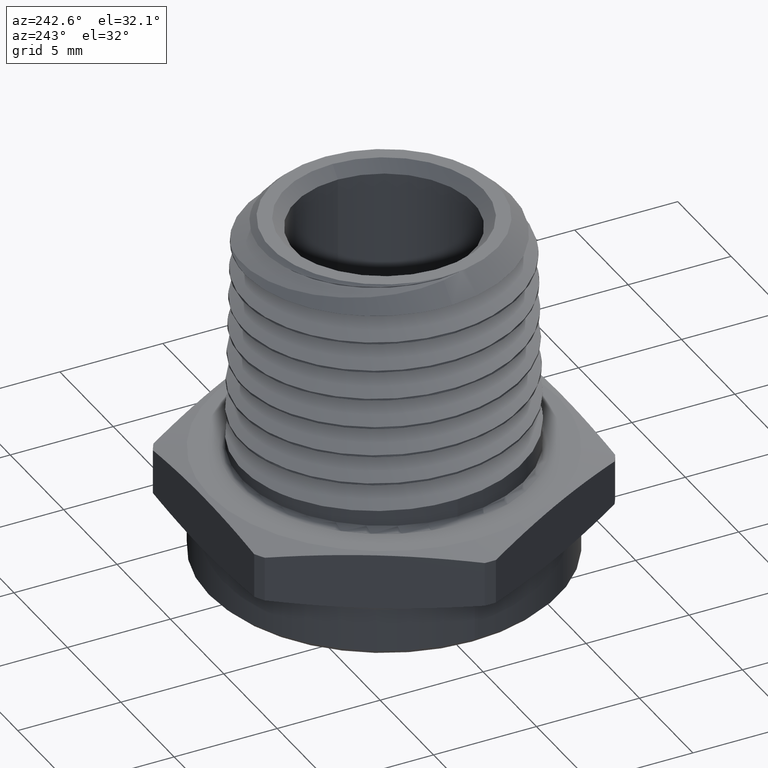
[diagram: clean part render]
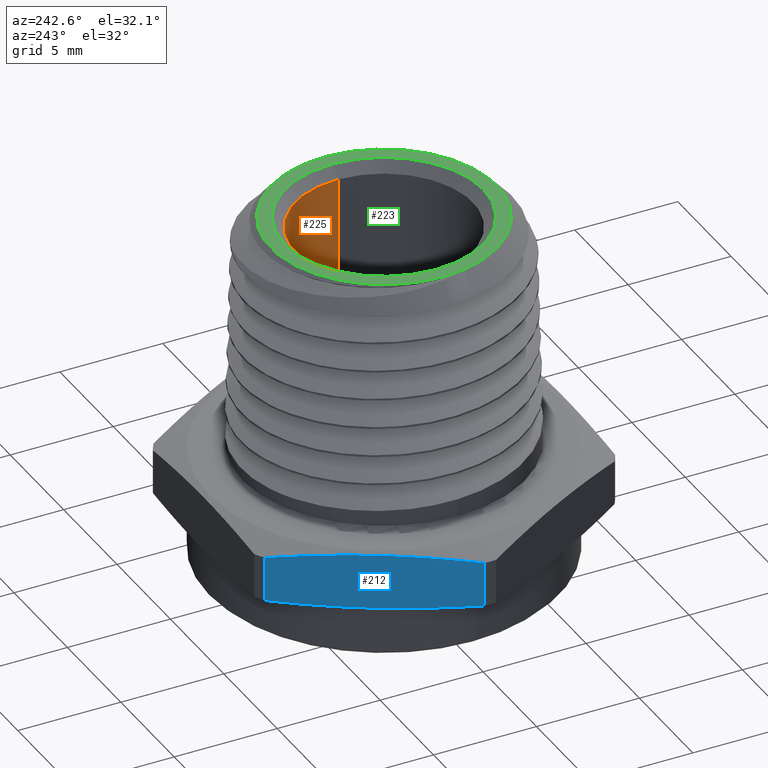
[diagram: same view with three faces highlighted in distinct colors, each labeled with its STEP entity id]
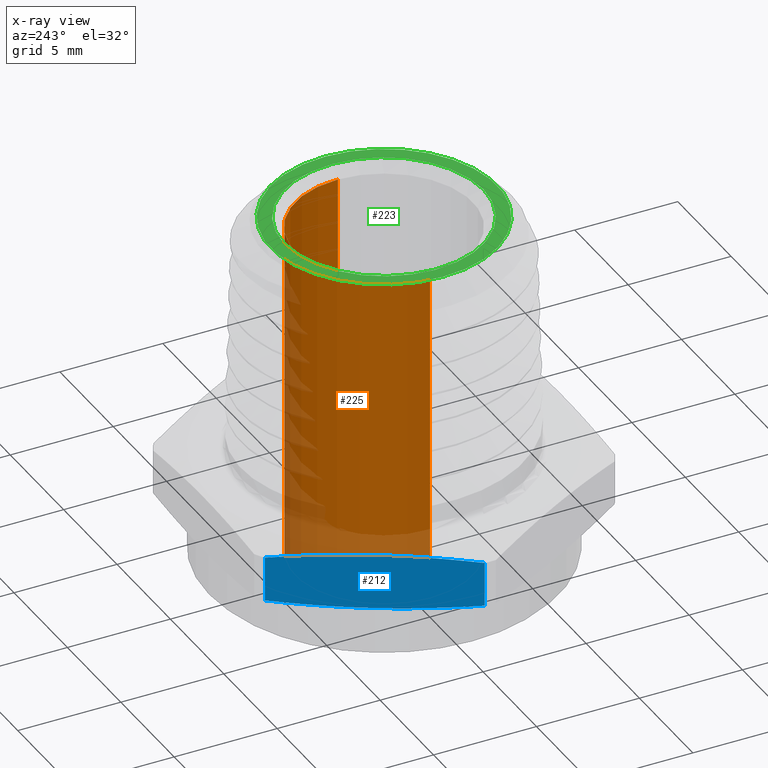
[diagram: x-ray of the same camera — body ghosted, the three highlighted faces saturated]
A machine part, auxiliary view with three faces highlighted in distinct colors.
The next image is the same camera in x-ray (body ghosted, the three faces saturated) — at least one of them is partly hidden behind the body in this view.
Their STEP definitions:

[orange] entity #225 — the highlighted cylindrical surface (partial cylindrical patch) has radius 4.318 mm, axis along (-0, -0, -1).
#56 = EDGE_CURVE ( 'NONE', #627, #629, #671, .T. ) ;
#59 = EDGE_CURVE ( 'NONE', #634, #635, #674, .T. ) ;
#118 = EDGE_CURVE ( 'NONE', #629, #635, #731, .T. ) ;
#165 = CARTESIAN_POINT ( 'NONE',  ( 0.1699999999999999600, 2.081899558550499800E-017, -0.1000000000000000200 ) ) ;
#166 = DIRECTION ( 'NONE',  ( -1.241027080502703100E-016, -0.0000000000000000000, -1.000000000000000000 ) ) ;
#225 = ADVANCED_FACE ( 'NONE', ( #827 ), #828, .F. ) ;
#227 = EDGE_CURVE ( 'NONE', #634, #627, #826, .T. ) ;
#340 = AXIS2_PLACEMENT_3D ( 'NONE', #1558, #1559, #1560 ) ;
#366 = EDGE_LOOP ( 'NONE', ( #378, #379, #380, #381 ) ) ;
#378 = ORIENTED_EDGE ( 'NONE', *, *, #56, .F. ) ;
#379 = ORIENTED_EDGE ( 'NONE', *, *, #227, .F. ) ;
#380 = ORIENTED_EDGE ( 'NONE', *, *, #59, .T. ) ;
#381 = ORIENTED_EDGE ( 'NONE', *, *, #118, .F. ) ;
#627 = VERTEX_POINT ( 'NONE', #4944 ) ;
#629 = VERTEX_POINT ( 'NONE', #4943 ) ;
#634 = VERTEX_POINT ( 'NONE', #4948 ) ;
#635 = VERTEX_POINT ( 'NONE', #4911 ) ;
#671 = LINE ( 'NONE', #165, #673 ) ;
#673 = VECTOR ( 'NONE', #166, 39.37007874015748100 ) ;
#674 = LINE ( 'NONE', #922, #677 ) ;
#677 = VECTOR ( 'NONE', #927, 39.37007874015748100 ) ;
#731 = CIRCLE ( 'NONE', #340, 0.1699999999999999800 ) ;
#826 = CIRCLE ( 'NONE', #1727, 0.1699999999999999800 ) ;
#827 = FACE_OUTER_BOUND ( 'NONE', #366, .T. ) ;
#828 = CYLINDRICAL_SURFACE ( 'NONE', #1729, 0.1699999999999999600 ) ;
#922 = CARTESIAN_POINT ( 'NONE',  ( -0.1699999999999999600, 0.0000000000000000000, -0.09999999999999999200 ) ) ;
#927 = DIRECTION ( 'NONE',  ( -1.241027080502703100E-016, -0.0000000000000000000, -1.000000000000000000 ) ) ;
#1558 = CARTESIAN_POINT ( 'NONE',  ( 7.944211343352838500E-017, 0.0000000000000000000, -0.09999999999999996400 ) ) ;
#1559 = DIRECTION ( 'NONE',  ( 0.0000000000000000000, 0.0000000000000000000, 1.000000000000000000 ) ) ;
#1560 = DIRECTION ( 'NONE',  ( 1.000000000000000000, 0.0000000000000000000, 0.0000000000000000000 ) ) ;
#1727 = AXIS2_PLACEMENT_3D ( 'NONE', #1840, #1841, #1842 ) ;
#1729 = AXIS2_PLACEMENT_3D ( 'NONE', #1831, #1832, #1830 ) ;
#1830 = DIRECTION ( 'NONE',  ( -1.000000000000000000, 0.0000000000000000000, 1.004355880023626400E-016 ) ) ;
#1831 = CARTESIAN_POINT ( 'NONE',  ( -1.224646799147327800E-018, 0.0000000000000000000, -0.1000000000000000100 ) ) ;
#1832 = DIRECTION ( 'NONE',  ( -1.241027080502703100E-016, -0.0000000000000000000, -1.000000000000000000 ) ) ;
#1840 = CARTESIAN_POINT ( 'NONE',  ( 7.944211343352838500E-017, 0.0000000000000000000, 0.5500000000000000400 ) ) ;
#1841 = DIRECTION ( 'NONE',  ( -1.241027080502703100E-016, -0.0000000000000000000, -1.000000000000000000 ) ) ;
#1842 = DIRECTION ( 'NONE',  ( -1.000000000000000000, 0.0000000000000000000, 0.0000000000000000000 ) ) ;
#4911 = CARTESIAN_POINT ( 'NONE',  ( -0.1699999999999999300, 0.0000000000000000000, -0.09999999999999996400 ) ) ;
#4943 = CARTESIAN_POINT ( 'NONE',  ( 0.1700000000000000700, 2.081899558550500800E-017, -0.09999999999999996400 ) ) ;
#4944 = CARTESIAN_POINT ( 'NONE',  ( 0.1700000000000000700, 0.0000000000000000000, 0.5500000000000000400 ) ) ;
#4948 = CARTESIAN_POINT ( 'NONE',  ( -0.1699999999999999300, 2.204364238465233400E-017, 0.5500000000000000400 ) ) ;

[blue] entity #212 — the highlighted planar face has unit normal (0.866, -0.5, 0).
#8 = B_SPLINE_CURVE_WITH_KNOTS ( 'NONE', 3,
 ( #153, #148, #149, #154, #155 ),
 .UNSPECIFIED., .F., .F.,
 ( 4, 1, 4 ),
 ( 1.975061656148175500E-006, 0.004749162338215731800, 0.009496349614775315100 ),
 .UNSPECIFIED. ) ;
#49 = EDGE_CURVE ( 'NONE', #649, #470, #8, .T. ) ;
#98 = EDGE_CURVE ( 'NONE', #470, #484, #708, .T. ) ;
#109 = EDGE_CURVE ( 'NONE', #471, #649, #727, .T. ) ;
#148 = CARTESIAN_POINT ( 'NONE',  ( -0.2364797186814896200, 0.2804051122840646200, 0.005887175410780998300 ) ) ;
#149 = CARTESIAN_POINT ( 'NONE',  ( -0.2987787643056310500, 0.1725000000000001000, -0.001636044177380791000 ) ) ;
#153 = CARTESIAN_POINT ( 'NONE',  ( -0.2053301958694190600, 0.3343576684260970400, 0.01219472825828593100 ) ) ;
#154 = CARTESIAN_POINT ( 'NONE',  ( -0.3610778099297727900, 0.06459488771593539800, 0.005887175410781007000 ) ) ;
#155 = CARTESIAN_POINT ( 'NONE',  ( -0.3922273327418436800, 0.01064233157390311600, 0.01219472825828593100 ) ) ;
#212 = ADVANCED_FACE ( 'NONE', ( #810 ), #1680, .F. ) ;
#250 = EDGE_CURVE ( 'NONE', #484, #471, #1518, .T. ) ;
#470 = VERTEX_POINT ( 'NONE', #4917 ) ;
#471 = VERTEX_POINT ( 'NONE', #4918 ) ;
#484 = VERTEX_POINT ( 'NONE', #4929 ) ;
#542 = EDGE_LOOP ( 'NONE', ( #5224, #5223, #5087, #5084 ) ) ;
#649 = VERTEX_POINT ( 'NONE', #4962 ) ;
#708 = LINE ( 'NONE', #1437, #712 ) ;
#712 = VECTOR ( 'NONE', #1443, 39.37007874015748100 ) ;
#727 = LINE ( 'NONE', #1468, #730 ) ;
#730 = VECTOR ( 'NONE', #1469, 39.37007874015748100 ) ;
#810 = FACE_OUTER_BOUND ( 'NONE', #542, .T. ) ;
#1437 = CARTESIAN_POINT ( 'NONE',  ( -0.3922273327418436300, 0.01064233157390311400, 1.144414902203096000E-017 ) ) ;
#1443 = DIRECTION ( 'NONE',  ( 1.224646799147351200E-016, 0.0000000000000000000, 1.000000000000000000 ) ) ;
#1468 = CARTESIAN_POINT ( 'NONE',  ( -0.2053301958694190600, 0.3343576684260970400, -1.144414902203096000E-017 ) ) ;
#1469 = DIRECTION ( 'NONE',  ( -1.224646799147351200E-016, -0.0000000000000000000, -1.000000000000000000 ) ) ;
#1518 = B_SPLINE_CURVE_WITH_KNOTS ( 'NONE', 3,
 ( #2387, #2382, #2381, #2388, #2389 ),
 .UNSPECIFIED., .F., .F.,
 ( 4, 1, 4 ),
 ( 1.975061655753539000E-006, 0.004749162338215338000, 0.009496349614774921400 ),
 .UNSPECIFIED. ) ;
#1678 = CARTESIAN_POINT ( 'NONE',  ( -0.1991858428704207700, 0.3450000000000000300, 0.1100000000000000000 ) ) ;
#1680 = PLANE ( 'NONE',  #1714 ) ;
#1714 = AXIS2_PLACEMENT_3D ( 'NONE', #1678, #1785, #1786 ) ;
#1785 = DIRECTION ( 'NONE',  ( 0.8660254037844386000, -0.5000000000000002200, 0.0000000000000000000 ) ) ;
#1786 = DIRECTION ( 'NONE',  ( 0.5000000000000002200, 0.8660254037844386000, 0.0000000000000000000 ) ) ;
#2381 = CARTESIAN_POINT ( 'NONE',  ( -0.2987787643056311600, 0.1725000000000000100, 0.1116360441773807900 ) ) ;
#2382 = CARTESIAN_POINT ( 'NONE',  ( -0.3610778099297727300, 0.06459488771593538400, 0.1041128245892189900 ) ) ;
#2387 = CARTESIAN_POINT ( 'NONE',  ( -0.3922273327418436800, 0.01064233157390311600, 0.09780527174171406400 ) ) ;
#2388 = CARTESIAN_POINT ( 'NONE',  ( -0.2364797186814897000, 0.2804051122840648400, 0.1041128245892189900 ) ) ;
#2389 = CARTESIAN_POINT ( 'NONE',  ( -0.2053301958694190600, 0.3343576684260970400, 0.09780527174171402300 ) ) ;
#4917 = CARTESIAN_POINT ( 'NONE',  ( -0.3922273327418436800, 0.01064233157390311600, 0.01219472825828593100 ) ) ;
#4918 = CARTESIAN_POINT ( 'NONE',  ( -0.2053301958694190600, 0.3343576684260970400, 0.09780527174171402300 ) ) ;
#4929 = CARTESIAN_POINT ( 'NONE',  ( -0.3922273327418436800, 0.01064233157390311600, 0.09780527174171406400 ) ) ;
#4962 = CARTESIAN_POINT ( 'NONE',  ( -0.2053301958694190600, 0.3343576684260970400, 0.01219472825828593100 ) ) ;
#5084 = ORIENTED_EDGE ( 'NONE', *, *, #109, .T. ) ;
#5087 = ORIENTED_EDGE ( 'NONE', *, *, #250, .T. ) ;
#5223 = ORIENTED_EDGE ( 'NONE', *, *, #98, .T. ) ;
#5224 = ORIENTED_EDGE ( 'NONE', *, *, #49, .T. ) ;

[green] entity #223 — the highlighted planar face has unit normal (0, 0, 1).
#61 = EDGE_CURVE ( 'NONE', #639, #632, #678, .T. ) ;
#223 = ADVANCED_FACE ( 'NONE', ( #794, #818 ), #1826, .T. ) ;
#226 = EDGE_CURVE ( 'NONE', #632, #639, #830, .T. ) ;
#257 = EDGE_CURVE ( 'NONE', #492, #493, #867, .T. ) ;
#262 = EDGE_CURVE ( 'NONE', #493, #492, #872, .T. ) ;
#320 = AXIS2_PLACEMENT_3D ( 'NONE', #930, #931, #932 ) ;
#361 = ORIENTED_EDGE ( 'NONE', *, *, #257, .F. ) ;
#362 = ORIENTED_EDGE ( 'NONE', *, *, #262, .F. ) ;
#367 = EDGE_LOOP ( 'NONE', ( #361, #362 ) ) ;
#368 = EDGE_LOOP ( 'NONE', ( #917, #1551 ) ) ;
#492 = VERTEX_POINT ( 'NONE', #4910 ) ;
#493 = VERTEX_POINT ( 'NONE', #4937 ) ;
#632 = VERTEX_POINT ( 'NONE', #4947 ) ;
#639 = VERTEX_POINT ( 'NONE', #4952 ) ;
#678 = CIRCLE ( 'NONE', #320, 0.1899999999999996700 ) ;
#794 = FACE_BOUND ( 'NONE', #368, .T. ) ;
#818 = FACE_OUTER_BOUND ( 'NONE', #367, .T. ) ;
#830 = CIRCLE ( 'NONE', #1728, 0.1899999999999996700 ) ;
#867 = CIRCLE ( 'NONE', #1741, 0.2165000000000000800 ) ;
#872 = CIRCLE ( 'NONE', #1742, 0.2165000000000000800 ) ;
#917 = ORIENTED_EDGE ( 'NONE', *, *, #61, .T. ) ;
#930 = CARTESIAN_POINT ( 'NONE',  ( 8.192416759453377200E-017, 0.0000000000000000000, 0.5699999999999999500 ) ) ;
#931 = DIRECTION ( 'NONE',  ( -1.241027080502703100E-016, -0.0000000000000000000, -1.000000000000000000 ) ) ;
#932 = DIRECTION ( 'NONE',  ( -1.000000000000000000, 0.0000000000000000000, 0.0000000000000000000 ) ) ;
#1551 = ORIENTED_EDGE ( 'NONE', *, *, #226, .T. ) ;
#1726 = AXIS2_PLACEMENT_3D ( 'NONE', #1824, #1823, #1828 ) ;
#1728 = AXIS2_PLACEMENT_3D ( 'NONE', #1835, #1836, #1837 ) ;
#1741 = AXIS2_PLACEMENT_3D ( 'NONE', #2407, #2408, #2409 ) ;
#1742 = AXIS2_PLACEMENT_3D ( 'NONE', #2459, #2460, #2461 ) ;
#1823 = DIRECTION ( 'NONE',  ( 0.0000000000000000000, 0.0000000000000000000, 1.000000000000000000 ) ) ;
#1824 = CARTESIAN_POINT ( 'NONE',  ( 0.0000000000000000000, 0.0000000000000000000, 0.5699999999999999500 ) ) ;
#1826 = PLANE ( 'NONE',  #1726 ) ;
#1828 = DIRECTION ( 'NONE',  ( 1.000000000000000000, 0.0000000000000000000, -0.0000000000000000000 ) ) ;
#1835 = CARTESIAN_POINT ( 'NONE',  ( 8.192416759453377200E-017, 0.0000000000000000000, 0.5699999999999999500 ) ) ;
#1836 = DIRECTION ( 'NONE',  ( -1.241027080502703100E-016, -0.0000000000000000000, -1.000000000000000000 ) ) ;
#1837 = DIRECTION ( 'NONE',  ( -1.000000000000000000, 0.0000000000000000000, 0.0000000000000000000 ) ) ;
#2407 = CARTESIAN_POINT ( 'NONE',  ( 0.0000000000000000000, 0.0000000000000000000, 0.5699999999999999500 ) ) ;
#2408 = DIRECTION ( 'NONE',  ( -0.0000000000000000000, -0.0000000000000000000, -1.000000000000000000 ) ) ;
#2409 = DIRECTION ( 'NONE',  ( -1.000000000000000000, 0.0000000000000000000, 0.0000000000000000000 ) ) ;
#2459 = CARTESIAN_POINT ( 'NONE',  ( 0.0000000000000000000, 0.0000000000000000000, 0.5699999999999999500 ) ) ;
#2460 = DIRECTION ( 'NONE',  ( -0.0000000000000000000, -0.0000000000000000000, -1.000000000000000000 ) ) ;
#2461 = DIRECTION ( 'NONE',  ( -1.000000000000000000, 0.0000000000000000000, 0.0000000000000000000 ) ) ;
#4910 = CARTESIAN_POINT ( 'NONE',  ( -0.2165000000000000800, 0.0000000000000000000, 0.5699999999999999500 ) ) ;
#4937 = CARTESIAN_POINT ( 'NONE',  ( 0.2165000000000000800, 2.873286106867002600E-017, 0.5699999999999999500 ) ) ;
#4947 = CARTESIAN_POINT ( 'NONE',  ( -0.1899999999999996100, 2.326828918379967500E-017, 0.5699999999999999500 ) ) ;
#4952 = CARTESIAN_POINT ( 'NONE',  ( 0.1899999999999997200, 0.0000000000000000000, 0.5699999999999999500 ) ) ;